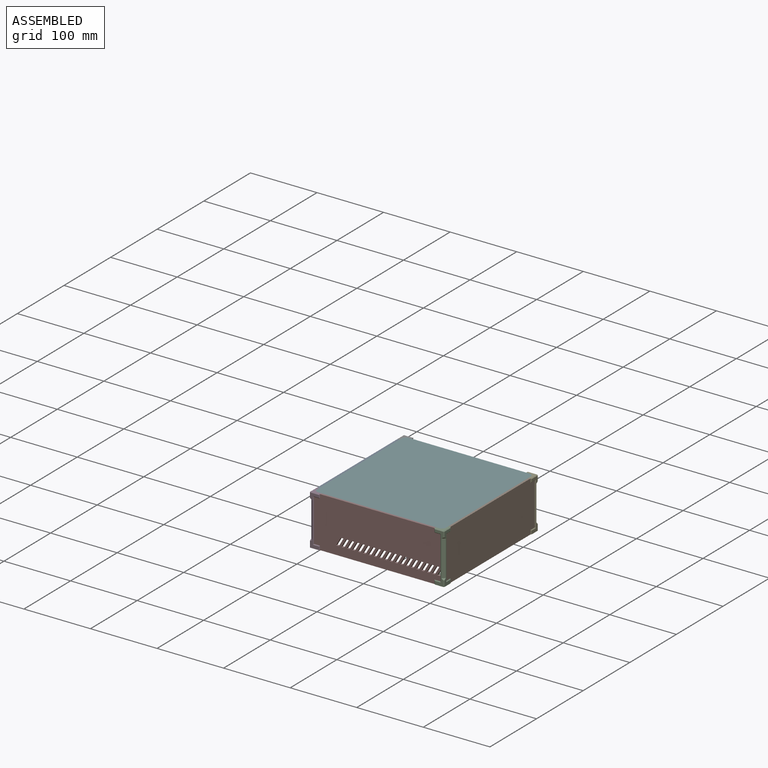
[diagram: assembled view]
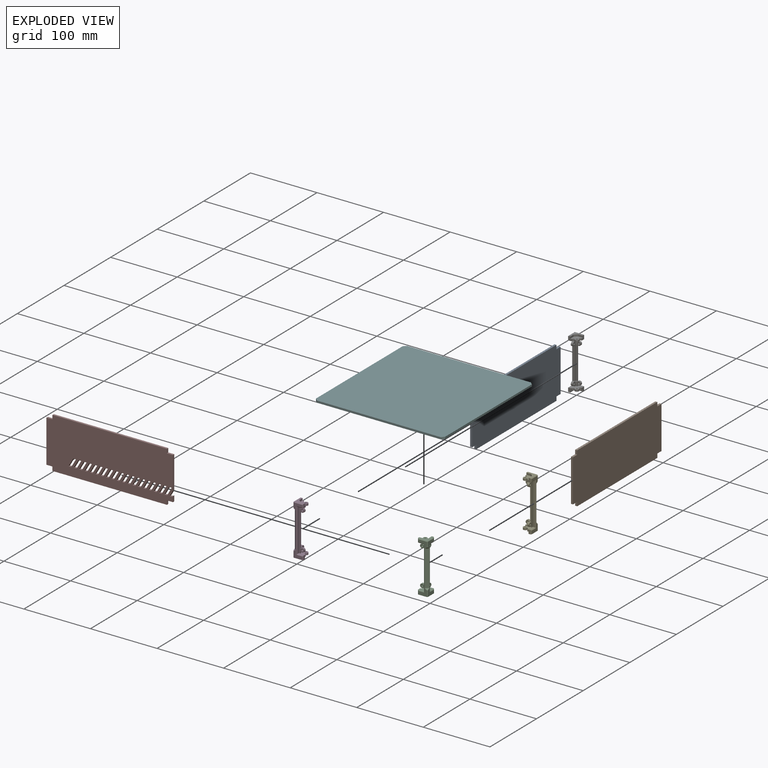
[diagram: exploded view]
GUIDED TOUR — MATED ASSEMBLY (Onshape document 97454ba8d18f91950a8470a4, AutoMate assembly 97454ba8d18f91950a8470a4_302fa4c81917cc30407d6a3c_9296b01ef51682fb7b4fb4d2_default)

This assembly has 8 components, labeled P0..P7 below (a component is one placed occurrence of a part; the same part can appear more than once), held together by 7 mates. A mate is a constraint between two components; its type names the relative motion it leaves free:
  FASTENED — locks the two components together rigidly (no relative motion).
Axis/direction vectors are unit vectors and 'through' points are millimeter coordinates, both in the assembly's world frame.

MATES
  1. FASTENED "Fastened 7": P5 <-> P3, direction (0.000, 0.000, 1.000) through (-105.32, 48.56, -0.74) mm
  2. FASTENED "Fastened 2": P2 <-> P7, direction (-1.000, 0.000, 0.000) through (77.68, 41.56, -0.74) mm
  3. FASTENED "Fastened 6": P4 <-> P1, direction (0.000, -1.000, 0.000) through (91.68, 227.56, -0.74) mm
  4. FASTENED "Fastened 5": P6 <-> P0, direction (0.000, -1.000, 0.000) through (-108.32, 227.56, -0.74) mm
  5. FASTENED "Fastened 4": P0 <-> P3, direction (0.000, -1.000, 0.000) through (-108.32, 55.56, -0.74) mm
  6. FASTENED "Fastened 1": P3 <-> P7, direction (1.000, 0.000, 0.000) through (-94.32, 41.56, -0.74) mm
  7. FASTENED "Fastened 3": P1 <-> P2, direction (0.000, -1.000, 0.000) through (91.68, 55.56, -0.74) mm

ASSEMBLY ORDER
  1. P4 — the base component [order verified]
  2. P6 [order verified]
  3. P1 [order verified]
  4. P0 [order verified]
  5. P3 [order verified]
  6. P2 [order verified]
  7. P5 [order verified]
  8. P7 [order verified]
(P0, P1, P5 verified with a relaxed clearance tolerance: the source model stores slight part interference there.)
Order-tag legend:
  [order verified] — this step's position reverses a verified removal order: the component was checked to insert without passing through the ones already placed.

Of the 8 components, 4 carry the full construction recipe — the FeatureScript program that regenerates the part's solid from scratch; the rest are supplied as boundary geometry only.
Each toured component is shown spotlighted twice — in the assembled view, then in the exploded view, where a leader line traces a displaced component back to its assembled socket (saturated green if recipe-attached, orange if geometry-only; every other component desaturated gray) — followed by its recipe or geometry summary and the mates that hold it.
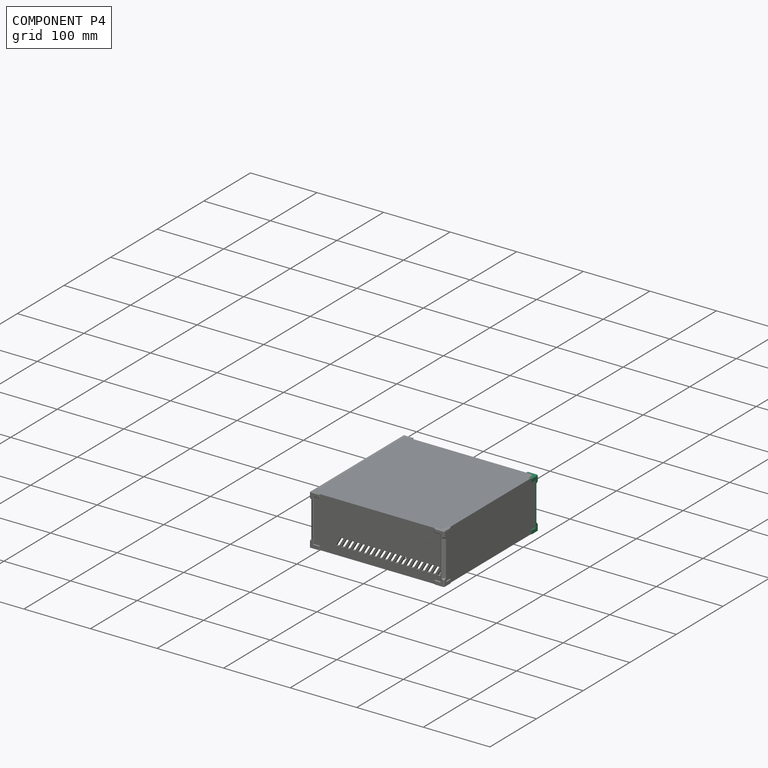
[diagram: component P4 — assembled]
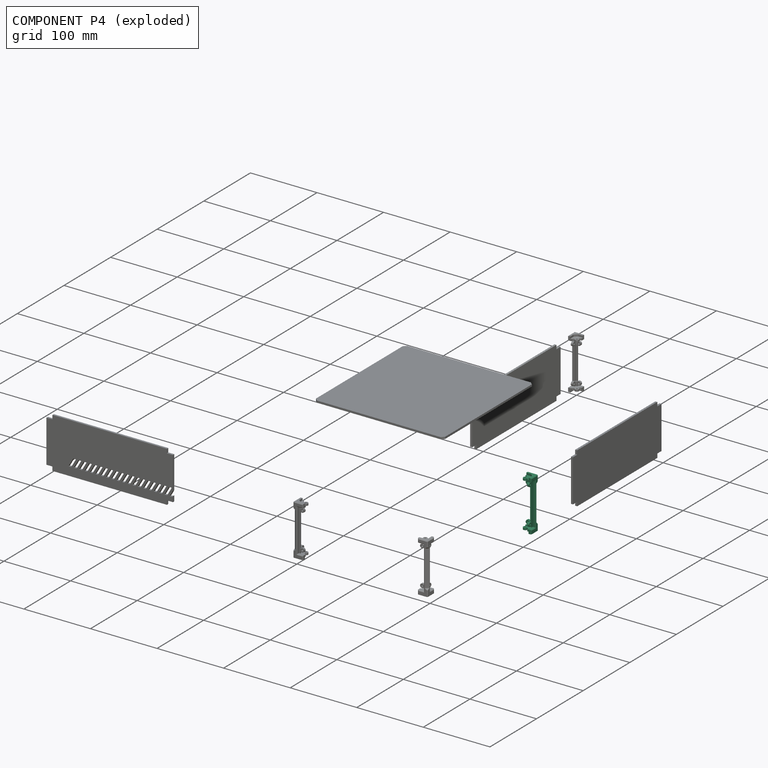
[diagram: component P4 — exploded]
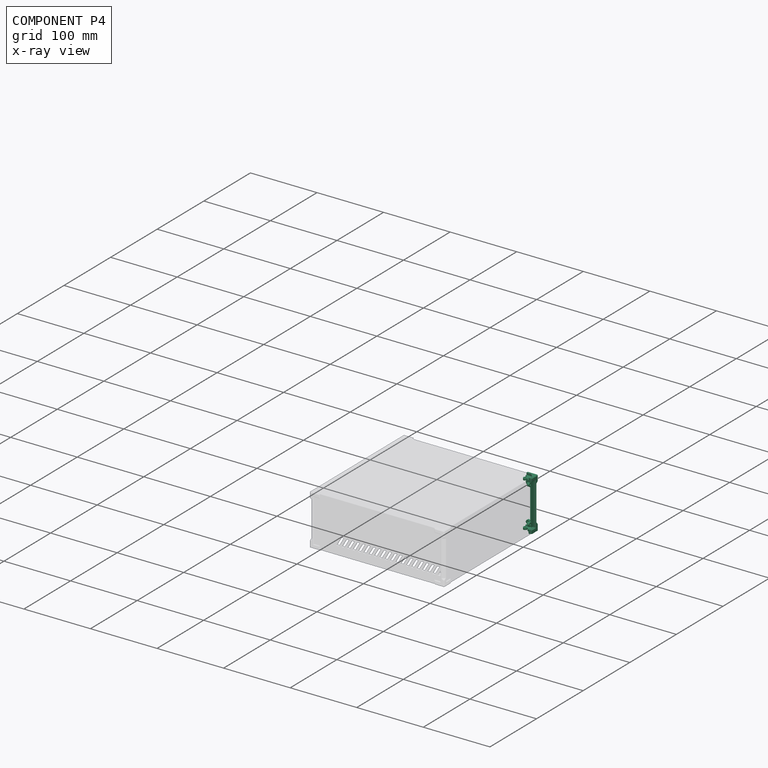
[diagram: component P4 — x-ray view]
COMPONENT P4 — same part as P2 (CADFS 00202125); its construction recipe is shown at P2.
Held by: FASTENED mate "Fastened 6" to P1.
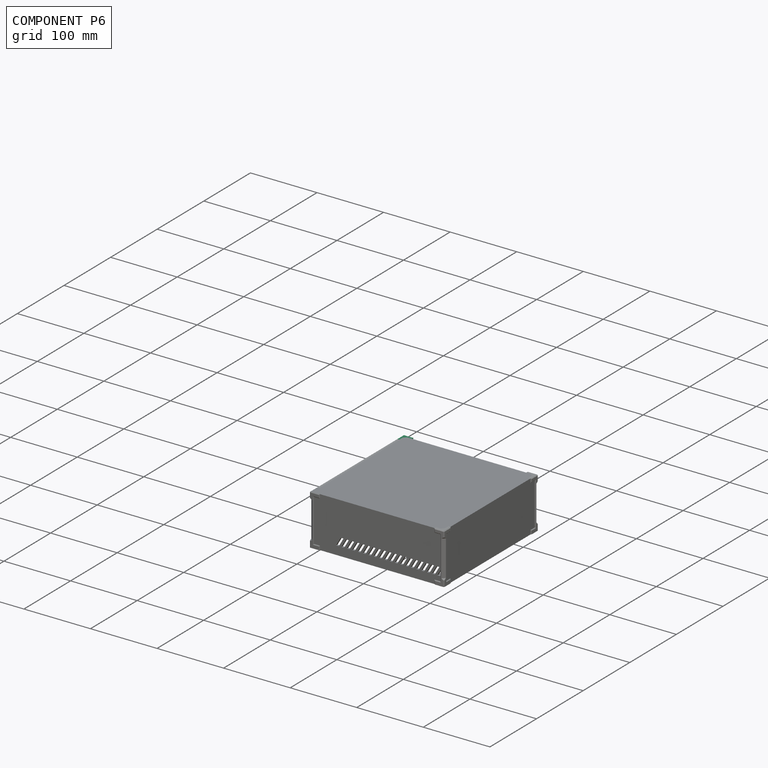
[diagram: component P6 — assembled]
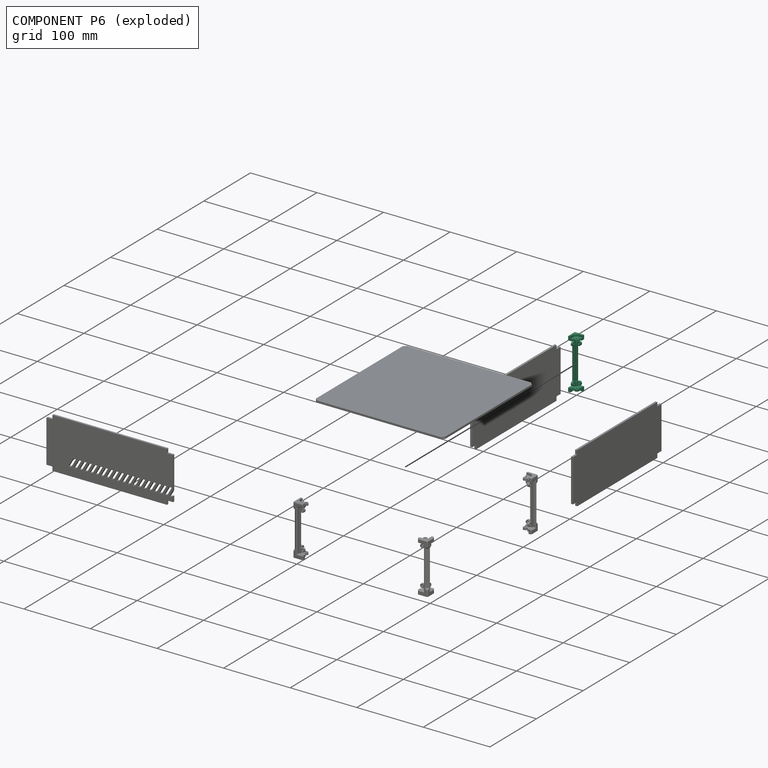
[diagram: component P6 — exploded]
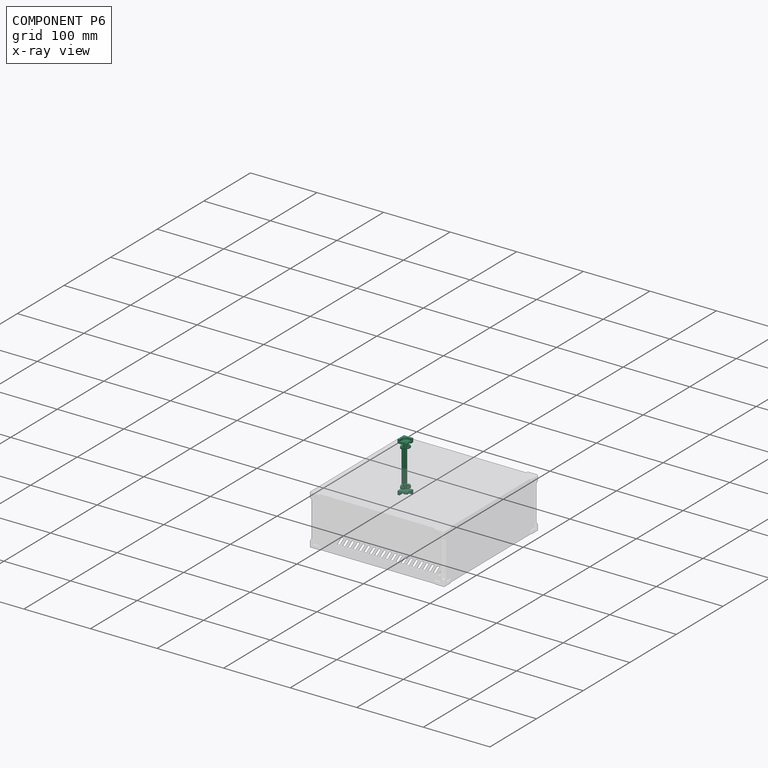
[diagram: component P6 — x-ray view]
COMPONENT P6 — same part as P2 (CADFS 00202125); its construction recipe is shown at P2.
Held by: FASTENED mate "Fastened 5" to P0.
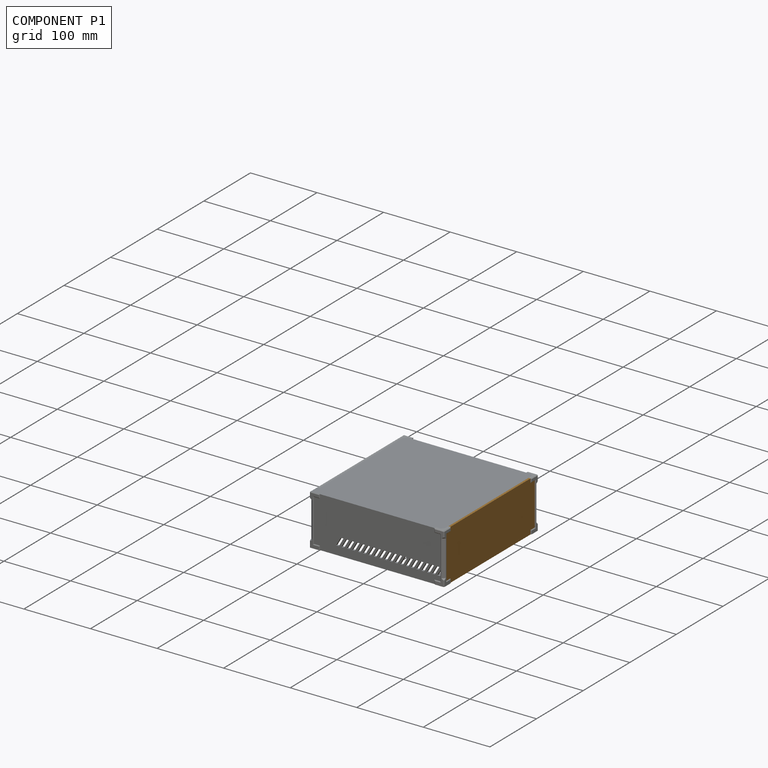
[diagram: component P1 — assembled]
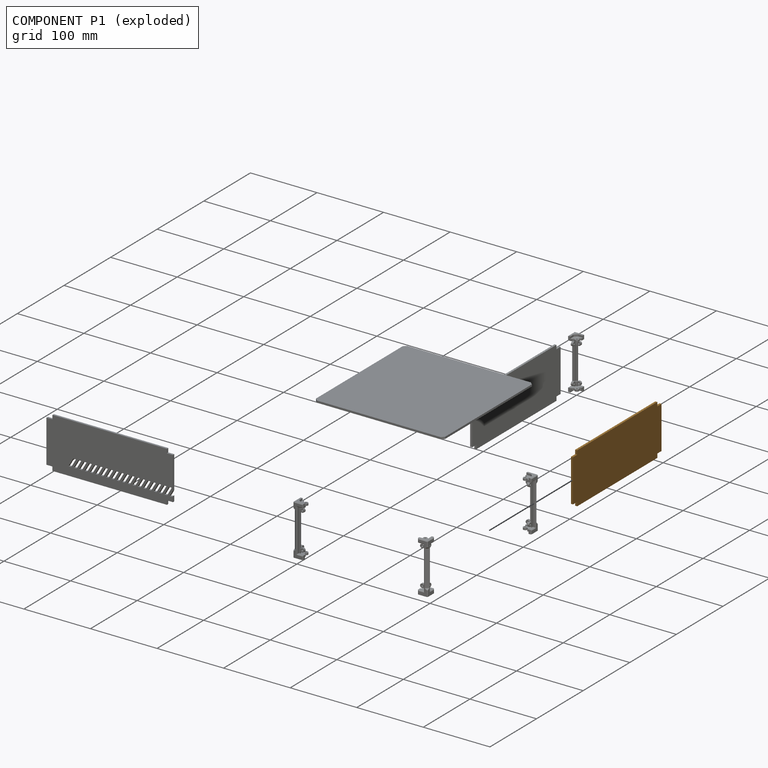
[diagram: component P1 — exploded]
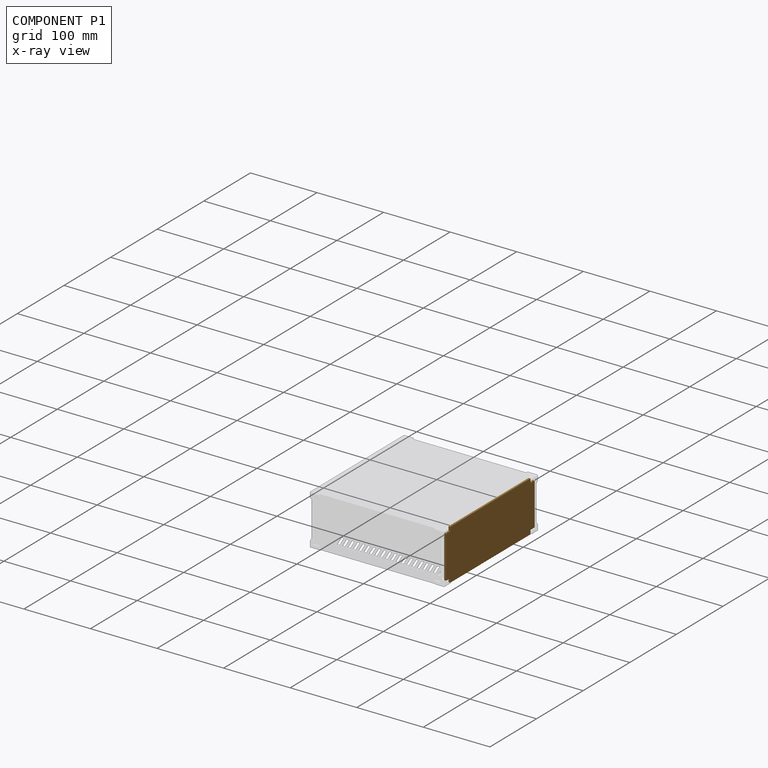
[diagram: component P1 — x-ray view]
COMPONENT P1 — geometry summary (no construction recipe available for this part):
  bounding box: 190.0 x 76.0 x 3.0 mm
  B-rep topology: 1 solid, 14 faces, 72 edges
  volume: 42672 mm^3 (99% of its bounding box)
  symmetry: 2-fold rotationally symmetric about the x axis; 2-fold rotationally symmetric about the y axis; 2-fold rotationally symmetric about the z axis; mirror-symmetric across its x mid-plane, y mid-plane, z mid-plane
Held by: FASTENED mate "Fastened 6" to P4; FASTENED mate "Fastened 3" to P2.
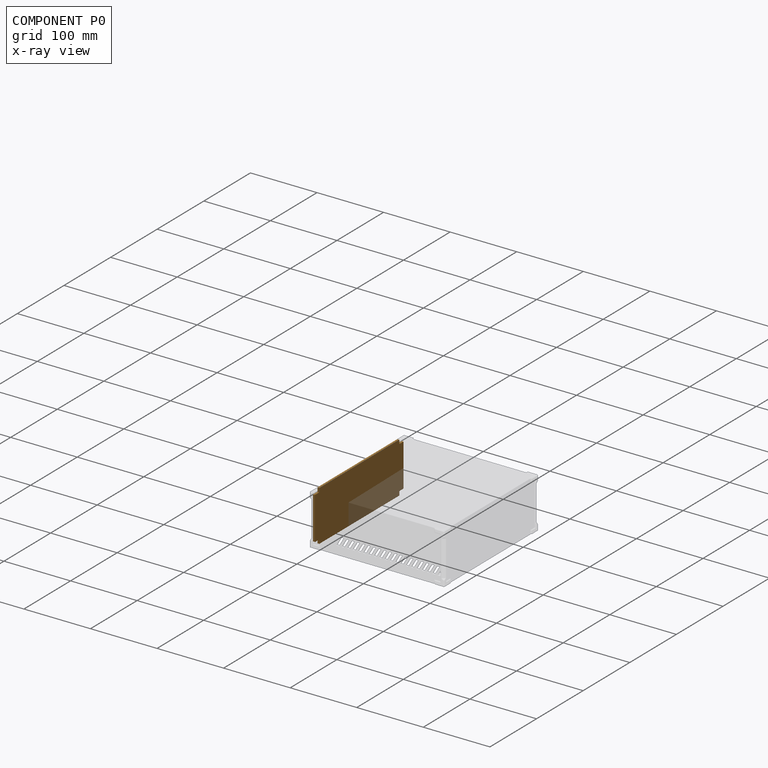
[diagram: component P0 — x-ray view]
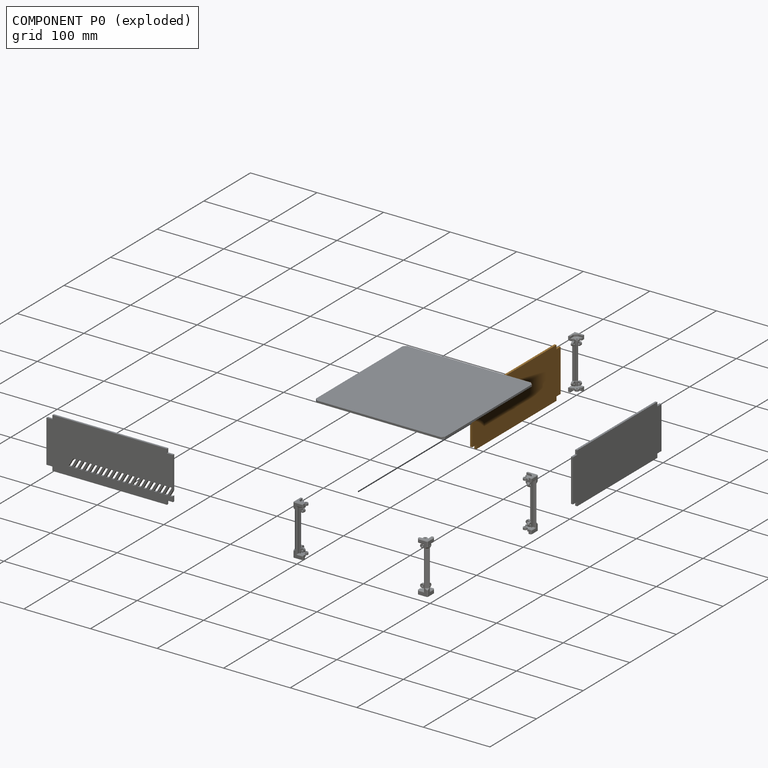
[diagram: component P0 — exploded]
COMPONENT P0 — geometry summary (no construction recipe available for this part):
  bounding box: 190.0 x 76.0 x 3.0 mm
  B-rep topology: 1 solid, 14 faces, 72 edges
  volume: 42672 mm^3 (99% of its bounding box)
  symmetry: 2-fold rotationally symmetric about the x axis; 2-fold rotationally symmetric about the y axis; 2-fold rotationally symmetric about the z axis; mirror-symmetric across its x mid-plane, y mid-plane, z mid-plane
Held by: FASTENED mate "Fastened 5" to P6; FASTENED mate "Fastened 4" to P3.
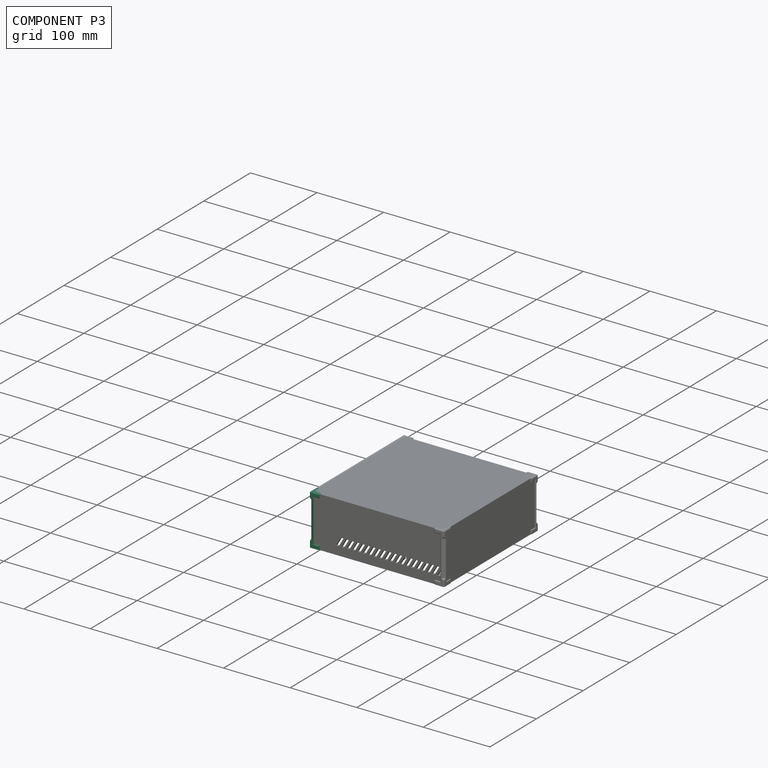
[diagram: component P3 — assembled]
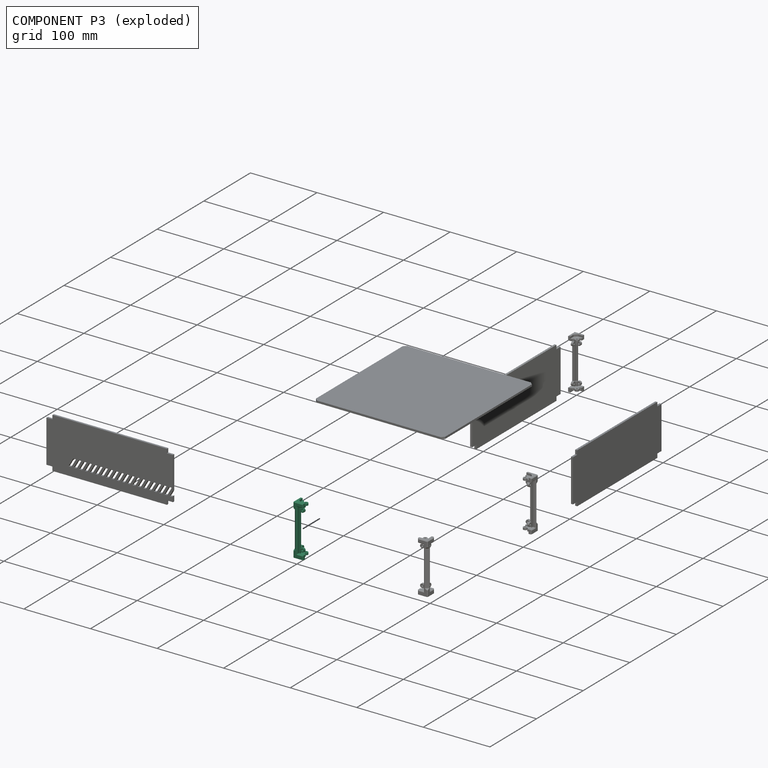
[diagram: component P3 — exploded]
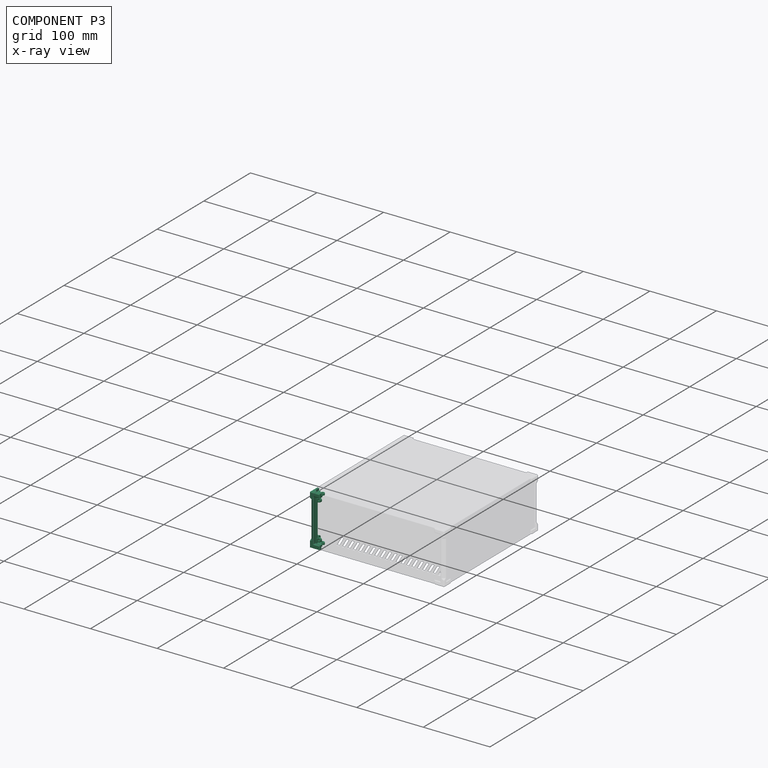
[diagram: component P3 — x-ray view]
COMPONENT P3 — same part as P2 (CADFS 00202125); its construction recipe is shown at P2.
Held by: FASTENED mate "Fastened 7" to P5; FASTENED mate "Fastened 4" to P0; FASTENED mate "Fastened 1" to P7.
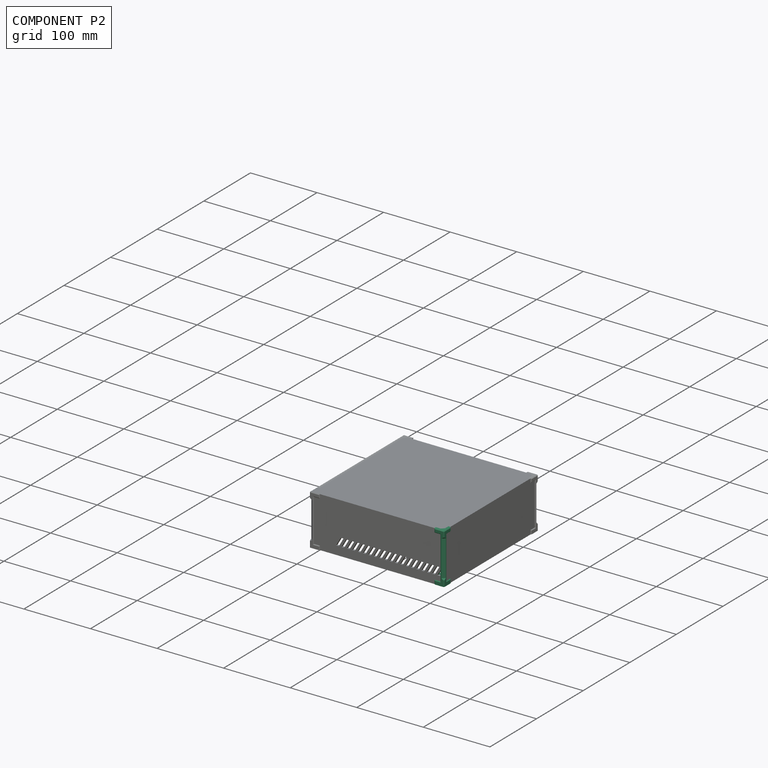
[diagram: component P2 — assembled]
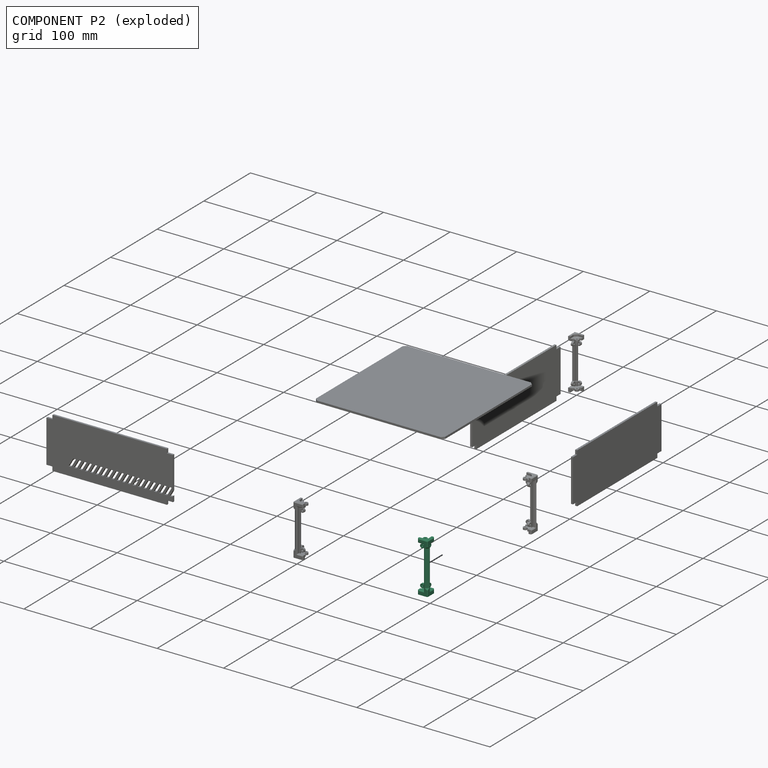
[diagram: component P2 — exploded]
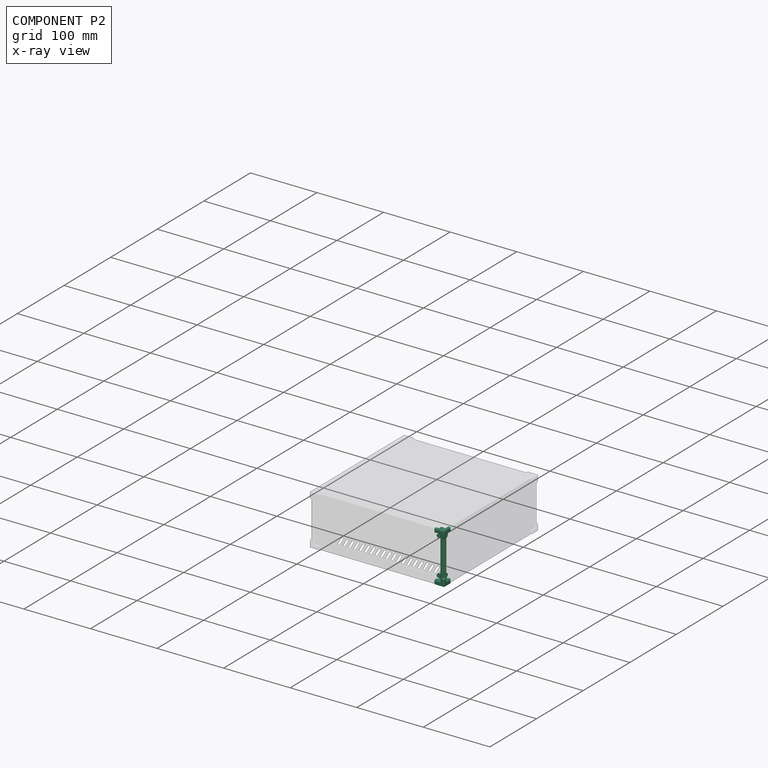
[diagram: component P2 — x-ray view]
COMPONENT P2 — recipe-attached (CADFS 00202125, mesh-verified: the recipe's output STEP matches this component's geometry to below the mesh-comparison resolution (tessellation chordal tolerance ~0.118 mm)).
Held by: FASTENED mate "Fastened 2" to P7; FASTENED mate "Fastened 3" to P1.
Construction recipe (FeatureScript — the CAD program that rebuilds this solid; sketch coordinates are in the units given by the * unit suffixes, e.g. mm):

FeatureScript 1511;
import(path : "onshape/std/geometry.fs", version : "1511.0");
import(path : "onshape/std/common.fs", version : "1511.0");
const mm = millimeter;
const VERTEX = EntityType.VERTEX;
const EDGE = EntityType.EDGE;
const FACE = EntityType.FACE;
const BODY = EntityType.BODY;
function v(x, y){return vector(x, y);}
function OD(order){return orderDisambiguation(order);}
function OSD(set){return originalSetDisambiguation(set);}
function TD(topology){return topologyDisambiguation(topology);}
function TDD(query){return trueDependencyDisambiguation(query);}
function sQuery(a, b, c) {return sketchEntityQuery(a, b, c);}

annotation { "Feature Type Name" : "Feature", "Feature Type Description" : "" }
export const myFeature = defineFeature(function(context is Context, id is Id, definition is map)
    precondition{}
    {
        {
            var Q0;
            Q0=qCreatedBy(makeId("Top.planeOp"),FACE);
            var sketch = newSketch(context, id + "F0", { "sketchPlane" : qUnion([Q0])});
            skLineSegment(sketch, "E0", {"start": v(-30.7, 8.8) * mm, "end": v(-30.7, -6.2) * mm});
            skLineSegment(sketch, "E1", {"start": v(-30.7, -6.2) * mm, "end": v(-15.7, -6.2) * mm});
            skLineSegment(sketch, "E2", {"start": v(-30.7, 8.8) * mm, "end": v(-29.7, 8.8) * mm});
            skLineSegment(sketch, "E3", {"start": v(-15.7, -6.2) * mm, "end": v(-15.7, -5.2) * mm});
            skLineSegment(sketch, "E4", {"start": v(-29.7, 8.8) * mm, "end": v(-24.7, 8.8) * mm});
            skLineSegment(sketch, "E5", {"start": v(-15.7, -5.2) * mm, "end": v(-15.7, -0.2) * mm});
            skLineSegment(sketch, "E6", {"start": v(-24.7, 8.8) * mm, "end": v(-24.7, -0.2) * mm});
            skLineSegment(sketch, "E7", {"start": v(-24.7, -0.2) * mm, "end": v(-15.7, -0.2) * mm});
            skSolve(sketch);
        }
        {
            var Q0;
            Q0=makeQuery(id+"F0.imprint","IMPRINT",FACE,{"disambiguationData":[TD([[makeQuery(id+"F0.imprint","IMPRINT",EDGE,{"derivedFrom":sQuery(id+"F0.wireOp",EDGE,"E0")}),1.0]])]});
            extrude(context, id + "F1", {"entities" : qUnion([Q0]), "depth" : 6 * mm});
        }
        {
            var Q0;
            Q0=makeQuery(id+"F1.opExtrude","CAP_FACE",FACE,{"disambiguationData":[OSD([sQuery(id+"F0.wireOp",EDGE,"E0"),sQuery(id+"F0.wireOp",EDGE,"E1"),sQuery(id+"F0.wireOp",EDGE,"E2"),sQuery(id+"F0.wireOp",EDGE,"E3"),sQuery(id+"F0.wireOp",EDGE,"E4"),sQuery(id+"F0.wireOp",EDGE,"E5"),sQuery(id+"F0.wireOp",EDGE,"E6"),sQuery(id+"F0.wireOp",EDGE,"E7")])],"isStart":false});
            var sketch = newSketch(context, id + "F2", { "sketchPlane" : qUnion([Q0])});
            skLineSegment(sketch, "E8.top", {"start": v(-30.7, -0.2) * mm, "end": v(-24.7, -0.2) * mm});
            skLineSegment(sketch, "E9", {"start": v(-24.7, -0.2) * mm, "end": v(-24.7, 1.8) * mm});
            skLineSegment(sketch, "E10", {"start": v(-24.7, 1.8) * mm, "end": v(-26.7, 1.8) * mm});
            skLineSegment(sketch, "E11", {"start": v(-26.7, 1.8) * mm, "end": v(-26.7, -0.2) * mm});
            skLineSegment(sketch, "E12", {"start": v(-24.7, -0.2) * mm, "end": v(-22.7, -0.2) * mm});
            skLineSegment(sketch, "E13", {"start": v(-22.7, -0.2) * mm, "end": v(-22.7, -2.2) * mm});
            skLineSegment(sketch, "E14", {"start": v(-22.7, -2.2) * mm, "end": v(-24.7, -2.2) * mm});
            skLineSegment(sketch, "E15", {"start": v(-24.7, -6.2) * mm, "end": v(-29.7, -6.2) * mm});
            skLineSegment(sketch, "E16", {"start": v(-24.7, -6.2) * mm, "end": v(-24.7, -2.2) * mm});
            skLineSegment(sketch, "E17", {"start": v(-24.7, -0.2) * mm, "end": v(-24.7, -2.2) * mm});
            skLineSegment(sketch, "E18", {"start": v(-30.7, -0.2) * mm, "end": v(-30.7, -5.2) * mm});
            skLineSegment(sketch, "E19", {"start": v(-30.7, -5.2) * mm, "end": v(-29.7, -6.2) * mm});
            skSolve(sketch);
        }
        {
            var Q0;
            Q0=makeQuery(id+"F2.imprint","IMPRINT",FACE,{"disambiguationData":[TD([[makeQuery(id+"F2.imprint","IMPRINT",EDGE,{"derivedFrom":sQuery(id+"F2.wireOp",EDGE,"E8.bottom")}),1.0]])]});
            var Q1;
            {var subQ0=sQuery(id+"F2.wireOp",EDGE,"E12");Q1=makeQuery(id+"F2.imprint","IMPRINT",FACE,{"disambiguationData":[TD([[makeQuery(id+"F2.imprint","IMPRINT",EDGE,{"derivedFrom":subQ0}),-1.0]])]});}
            var Q2;
            Q2=makeQuery(id+"F2.imprint","IMPRINT",FACE,{"disambiguationData":[TD([[makeQuery(id+"F2.imprint","IMPRINT",EDGE,{"derivedFrom":sQuery(id+"F2.wireOp",EDGE,"E15")}),1.0]])]});
            var Q3;
            {var subQ0=sQuery(id+"F2.wireOp",EDGE,"E9");Q3=makeQuery(id+"F2.imprint","IMPRINT",FACE,{"disambiguationData":[TD([[makeQuery(id+"F2.imprint","IMPRINT",EDGE,{"derivedFrom":subQ0}),-1.0]])]});}
            extrude(context, id + "F3", {"entities" : qUnion([Q0, Q1, Q2, Q3]), "operationType" : NewBodyOperationType.ADD, "depth" : 5 * mm});
        }
        {
            var Q0;
            Q0=makeQuery(id+"F3.opExtrude","CAP_FACE",FACE,{"disambiguationData":[OSD([sQuery(id+"F2.wireOp",EDGE,"E8.bottom"),sQuery(id+"F2.wireOp",EDGE,"E8.top"),sQuery(id+"F2.wireOp",EDGE,"E8.left"),sQuery(id+"F2.wireOp",EDGE,"E8.right"),sQuery(id+"F2.wireOp",EDGE,"E9"),sQuery(id+"F2.wireOp",EDGE,"E10"),sQuery(id+"F2.wireOp",EDGE,"E11"),sQuery(id+"F2.wireOp",EDGE,"E12"),sQuery(id+"F2.wireOp",EDGE,"E13"),sQuery(id+"F2.wireOp",EDGE,"E14")])],"isStart":false});
            var sketch = newSketch(context, id + "F4", { "sketchPlane" : qUnion([Q0])});
            skLineSegment(sketch, "E20", {"start": v(-24.7, -6.2) * mm, "end": v(-26.7, -6.2) * mm});
            skLineSegment(sketch, "E21", {"start": v(-30.7, -0.2) * mm, "end": v(-30.7, -2.2) * mm});
            skLineSegment(sketch, "E22", {"start": v(-26.7, -6.2) * mm, "end": v(-30.7, -2.2) * mm});
            skLineSegment(sketch, "E23", {"start": v(-24.7, -6.2) * mm, "end": v(-24.7, -2.2) * mm});
            skLineSegment(sketch, "E24", {"start": v(-24.7, -2.2) * mm, "end": v(-22.7, -2.2) * mm});
            skLineSegment(sketch, "E25", {"start": v(-22.7, -2.2) * mm, "end": v(-22.7, -0.2) * mm});
            skLineSegment(sketch, "E26", {"start": v(-22.7, -0.2) * mm, "end": v(-24.7, -0.2) * mm});
            skLineSegment(sketch, "E27", {"start": v(-24.7, -0.2) * mm, "end": v(-24.7, 1.8) * mm});
            skLineSegment(sketch, "E28", {"start": v(-24.7, 1.8) * mm, "end": v(-26.7, 1.8) * mm});
            skLineSegment(sketch, "E29", {"start": v(-26.7, 1.8) * mm, "end": v(-26.7, -0.2) * mm});
            skLineSegment(sketch, "E30", {"start": v(-26.7, -0.2) * mm, "end": v(-30.7, -0.2) * mm});
            skSolve(sketch);
        }
        {
            var Q0;
            Q0=makeQuery(id+"F4.imprint","IMPRINT",FACE,{"disambiguationData":[TD([[makeQuery(id+"F4.imprint","IMPRINT",EDGE,{"derivedFrom":sQuery(id+"F4.wireOp",EDGE,"E20")}),1.0]])]});
            extrude(context, id + "F5", {"entities" : qUnion([Q0]), "operationType" : NewBodyOperationType.ADD, "depth" : 27 * mm});
        }
        {
            var Q0;
            Q0=makeQuery(id+"F5.boolean.opBoolean","MERGE",FACE,{"derivedFrom":[makeQuery(id+"F3.opExtrude","SWEPT_FACE",FACE,{"disambiguationData":[OSD([sQuery(id+"F2.wireOp",EDGE,"E14")])]}),makeQuery(id+"F5.opExtrude","SWEPT_FACE",FACE,{"disambiguationData":[OSD([sQuery(id+"FcikvxoAmVT8Sga_1.wireOp",EDGE,"Ugr4Xeua-PaRH-PEAE-46ir-bzMubUFrfAmX")])]})]});
            var sketch = newSketch(context, id + "F6", { "sketchPlane" : qUnion([Q0])});
            skLineSegment(sketch, "E31", {"start": v(-22.7, 6) * mm, "end": v(-22.7, 11) * mm});
            skLineSegment(sketch, "E32", {"start": v(-22.7, 11) * mm, "end": v(-19.7, 11) * mm});
            skCircle(sketch, "E33", {"center": v(-19.7, 11) * mm, "radius": 1.25 * mm});
            skCircle(sketch, "E34", {"center": v(-19.7, 11) * mm, "radius": 3 * mm});
            skLineSegment(sketch, "E35", {"start": v(-22.7, 6) * mm, "end": v(-22.7, 9) * mm});
            skLineSegment(sketch, "E36", {"start": v(-22.7, 9) * mm, "end": v(-21.94, 9) * mm});
            skLineSegment(sketch, "E37", {"start": v(-22.7, 11) * mm, "end": v(-22.7, 13) * mm});
            skLineSegment(sketch, "E38", {"start": v(-22.7, 13) * mm, "end": v(-21.94, 13) * mm});
            skSolve(sketch);
        }
        {
            var Q0;
            Q0=makeQuery(id+"F6.imprint","IMPRINT",FACE,{"disambiguationData":[TD([[makeQuery(id+"F6.imprint","IMPRINT",EDGE,{"derivedFrom":sQuery(id+"F6.wireOp",EDGE,"E33")}),-1.0]])]});
            var Q1;
            {var subQ0=sQuery(id+"F6.wireOp",EDGE,"E37");Q1=makeQuery(id+"F6.imprint","IMPRINT",FACE,{"disambiguationData":[TD([[makeQuery(id+"F6.imprint","IMPRINT",EDGE,{"derivedFrom":subQ0}),1.0]])]});}
            var Q2;
            {var subQ0=sQuery(id+"F6.wireOp",EDGE,"E31");Q2=makeQuery(id+"F6.imprint","IMPRINT",FACE,{"disambiguationData":[TD([[makeQuery(id+"F6.imprint","IMPRINT",EDGE,{"derivedFrom":subQ0}),1.0]])]});}
            extrude(context, id + "F7", {"entities" : qUnion([Q0, Q1, Q2]), "operationType" : NewBodyOperationType.ADD, "oppositeDirection" : true, "depth" : 3 * mm});
        }
        {
            var Q0;
            Q0=makeQuery(id+"F5.boolean.opBoolean","MERGE",FACE,{"derivedFrom":[makeQuery(id+"F3.opExtrude","SWEPT_FACE",FACE,{"disambiguationData":[OSD([sQuery(id+"F2.wireOp",EDGE,"E11")])]}),makeQuery(id+"F5.opExtrude","SWEPT_FACE",FACE,{"disambiguationData":[OSD([sQuery(id+"FcikvxoAmVT8Sga_1.wireOp",EDGE,"rjj8wiBv-6VFg-MGKm-luXr-hqUBBP5AjTz5")])]})]});
            var sketch = newSketch(context, id + "F8", { "sketchPlane" : qUnion([Q0])});
            skLineSegment(sketch, "E39", {"start": v(-1.8, 6) * mm, "end": v(-1.8, 9) * mm});
            skLineSegment(sketch, "E40", {"start": v(-1.8, 9) * mm, "end": v(-1.8, 13) * mm});
            skLineSegment(sketch, "E41", {"start": v(-1.8, 11) * mm, "end": v(-4.8, 11) * mm});
            skCircle(sketch, "E42", {"center": v(-4.8, 11) * mm, "radius": 1.25 * mm});
            skCircle(sketch, "E43", {"center": v(-4.8, 11) * mm, "radius": 3 * mm});
            skLineSegment(sketch, "E44", {"start": v(-1.8, 13) * mm, "end": v(-2.56, 13) * mm});
            skLineSegment(sketch, "E45", {"start": v(-1.8, 9) * mm, "end": v(-2.56, 9) * mm});
            skSolve(sketch);
        }
        {
            var Q0;
            Q0=qSketchRegion(id+"F8",true);
            extrude(context, id + "F9", {"entities" : qUnion([Q0]), "operationType" : NewBodyOperationType.ADD, "oppositeDirection" : true, "depth" : 3 * mm});
        }
        {
            var Q0;
            Q0=makeQuery(id+"F7.opExtrude","SWEPT_FACE",FACE,{"disambiguationData":[OSD([sQuery(id+"F6.wireOp",EDGE,"E38")])]});
            var sketch = newSketch(context, id + "F10", { "sketchPlane" : qUnion([Q0])});
            skLineSegment(sketch, "E46.0", {"start": v(-23.7, 1.8) * mm, "end": v(-24.7, 1.8) * mm});
            skLineSegment(sketch, "E47", {"start": v(-22.7, 0.8) * mm, "end": v(-23.7, 1.8) * mm});
            skLineSegment(sketch, "E48", {"start": v(-24.7, 1.8) * mm, "end": v(-24.7, -0.2) * mm});
            skLineSegment(sketch, "E49", {"start": v(-24.7, -0.2) * mm, "end": v(-22.7, -0.2) * mm});
            skLineSegment(sketch, "E50", {"start": v(-22.7, -0.2) * mm, "end": v(-22.7, 0.8) * mm});
            skSolve(sketch);
        }
        {
            var Q0;
            Q0=makeQuery(id+"F10.imprint","IMPRINT",FACE,{"disambiguationData":[TD([[makeQuery(id+"F10.imprint","IMPRINT",EDGE,{"derivedFrom":sQuery(id+"F10.wireOp",EDGE,"E46.0")}),1.0]])]});
            extrude(context, id + "F11", {"entities" : qUnion([Q0]), "operationType" : NewBodyOperationType.ADD, "oppositeDirection" : true, "depth" : 4 * mm});
        }
        {
            var Q0;
            Q0=makeQuery(id+"F1.opExtrude","CAP_FACE",FACE,{"disambiguationData":[OSD([sQuery(id+"F0.wireOp",EDGE,"E0"),sQuery(id+"F0.wireOp",EDGE,"E1"),sQuery(id+"F0.wireOp",EDGE,"E2"),sQuery(id+"F0.wireOp",EDGE,"E3"),sQuery(id+"F0.wireOp",EDGE,"E4"),sQuery(id+"F0.wireOp",EDGE,"E5"),sQuery(id+"F0.wireOp",EDGE,"E6"),sQuery(id+"F0.wireOp",EDGE,"E7")])],"isStart":true});
            var sketch = newSketch(context, id + "F12", { "sketchPlane" : qUnion([Q0])});
            skLineSegment(sketch, "E51", {"start": v(-15.7, 0.2) * mm, "end": v(-15.7, 2.2) * mm});
            skLineSegment(sketch, "E52", {"start": v(-15.7, 2.2) * mm, "end": v(-22.7, 2.2) * mm});
            skLineSegment(sketch, "E53", {"start": v(-15.7, 0.2) * mm, "end": v(-24.7, 0.2) * mm});
            skLineSegment(sketch, "E54", {"start": v(-24.7, 0.2) * mm, "end": v(-24.7, -8.8) * mm});
            skLineSegment(sketch, "E55", {"start": v(-24.7, -8.8) * mm, "end": v(-26.7, -8.8) * mm});
            skLineSegment(sketch, "E56", {"start": v(-26.7, -8.8) * mm, "end": v(-26.7, -1.8) * mm});
            skLineSegment(sketch, "E57", {"start": v(-22.7, 2.2) * mm, "end": v(-26.7, -1.8) * mm});
            skSolve(sketch);
        }
        {
            var Q0;
            {var subQ0=sQuery(id+"F12.wireOp",EDGE,"E54");Q0=makeQuery(id+"F12.imprint","IMPRINT",FACE,{"disambiguationData":[TD([[makeQuery(id+"F12.imprint","IMPRINT",EDGE,{"derivedFrom":subQ0}),1.0]])]});}
            var Q1;
            Q1=makeQuery(id+"F12.imprint","IMPRINT",FACE,{"disambiguationData":[TD([[makeQuery(id+"F12.imprint","IMPRINT",EDGE,{"derivedFrom":sQuery(id+"F12.wireOp",EDGE,"E51")}),-1.0]])]});
            extrude(context, id + "F13", {"entities" : qUnion([Q0, Q1]), "operationType" : NewBodyOperationType.REMOVE, "oppositeDirection" : true, "depth" : 3 * mm});
        }
        {
            var Q0;
            Q0=makeQuery(id+"F13.boolean.opBoolean","COPY",FACE,{"derivedFrom":makeQuery(id+"F13.opExtrude","CAP_FACE",FACE,{"disambiguationData":[OSD([sQuery(id+"F12.wireOp",EDGE,"E51"),sQuery(id+"F12.wireOp",EDGE,"E52"),sQuery(id+"F12.wireOp",EDGE,"E53"),sQuery(id+"F12.wireOp",EDGE,"E57")])],"isStart":false})});
            var sketch = newSketch(context, id + "F14", { "sketchPlane" : qUnion([Q0])});
            skLineSegment(sketch, "E58", {"start": v(-24.7, 0.2) * mm, "end": v(-24.7, -7.8) * mm});
            skLineSegment(sketch, "E59", {"start": v(-16.7, 0.2) * mm, "end": v(-24.7, -7.8) * mm});
            skLineSegment(sketch, "E60", {"start": v(-20.7, -3.8) * mm, "end": v(-19.3, -5.2) * mm});
            skCircle(sketch, "E61", {"center": v(-19.3, -5.2) * mm, "radius": 1.25 * mm});
            skCircle(sketch, "E62", {"center": v(-19.3, -5.2) * mm, "radius": 3 * mm});
            skLineSegment(sketch, "E63", {"start": v(-16.7, 0.2) * mm, "end": v(-24.7, 0.2) * mm});
            skSolve(sketch);
        }
        {
            var Q0;
            Q0=qSketchRegion(id+"F14",true);
            extrude(context, id + "F15", {"entities" : qUnion([Q0]), "operationType" : NewBodyOperationType.ADD, "oppositeDirection" : true, "depth" : 3 * mm});
        }
        {
            var Q0;
            Q0=makeQuery(id+"F1.opExtrude","SWEPT_BODY",BODY,{"disambiguationData":[OSD([sQuery(id+"F0.wireOp",EDGE,"E0"),sQuery(id+"F0.wireOp",EDGE,"E1"),sQuery(id+"F0.wireOp",EDGE,"E2"),sQuery(id+"F0.wireOp",EDGE,"E3"),sQuery(id+"F0.wireOp",EDGE,"E4"),sQuery(id+"F0.wireOp",EDGE,"E5"),sQuery(id+"F0.wireOp",EDGE,"E6"),sQuery(id+"F0.wireOp",EDGE,"E7")])]});
            var Q1;
            Q1=makeQuery(id+"F5.opExtrude","CAP_FACE",FACE,{"disambiguationData":[OSD([sQuery(id+"F4.wireOp",EDGE,"E20"),sQuery(id+"F4.wireOp",EDGE,"E21"),sQuery(id+"F4.wireOp",EDGE,"E22"),sQuery(id+"F4.wireOp",EDGE,"E23"),sQuery(id+"F4.wireOp",EDGE,"E24"),sQuery(id+"F4.wireOp",EDGE,"E25"),sQuery(id+"F4.wireOp",EDGE,"E26"),sQuery(id+"F4.wireOp",EDGE,"E27"),sQuery(id+"F4.wireOp",EDGE,"E28"),sQuery(id+"F4.wireOp",EDGE,"E29"),sQuery(id+"F4.wireOp",EDGE,"E30")])],"isStart":false});
            mirror(context, id + "F16", {"operationType" : NewBodyOperationType.ADD, "entities" : qUnion([Q0]), "mirrorPlane" : qUnion([Q1])});
        }
        {
            var Q0;
            Q0=makeQuery(id+"FhzFfjnD5mDQNPN_1.boolean.opBoolean","MERGE",EDGE,{"derivedFrom":[makeQuery(id+"FrQZREyW5eWcuGQ_1.boolean.opBoolean","MERGE",EDGE,{"derivedFrom":[makeQuery(id+"F1.opExtrude","SWEPT_EDGE",EDGE,{"disambiguationData":[OSD([sQuery(id+"F0.wireOp",EDGE,"E0"),sQuery(id+"F0.wireOp",EDGE,"E1")])]}),makeQuery(id+"FrQZREyW5eWcuGQ_1.opExtrude","SWEPT_EDGE",EDGE,{"disambiguationData":[OSD([sQuery(id+"FOzdUzQN7WSNxo8_1.wireOp",EDGE,"WiYNZVCE-U4Jg-TT48-NUzQ-lxR1TrsUEIwd"),sQuery(id+"FOzdUzQN7WSNxo8_1.wireOp",EDGE,"8d8B1xfc-AYmp-EXSV-HG8z-yugG2Eprzqf7")])]})]}),makeQuery(id+"FhzFfjnD5mDQNPN_1.opExtrude","CAP_EDGE",EDGE,{"disambiguationData":[OSD([sQuery(id+"FUuBHju1a3qaWlO_1.wireOp",EDGE,"Y2hAY4q1-hRi0-7PEO-YUI0-E3ofIxBZuGLo")])],"isStart":true})]});
            var Q1;
            {var subQ0=makeQuery(id+"F5.boolean.opBoolean","MERGE",EDGE,{"derivedFrom":[makeQuery(id+"F3.opExtrude","SWEPT_EDGE",EDGE,{"disambiguationData":[OSD([sQuery(id+"F0.wireOp",EDGE,"E1"),sQuery(id+"F2.wireOp",EDGE,"E15"),sQuery(id+"F2.wireOp",EDGE,"E16")])]}),makeQuery(id+"F5.opExtrude","SWEPT_EDGE",EDGE,{"disambiguationData":[OSD([sQuery(id+"F4.wireOp",EDGE,"E20"),sQuery(id+"F4.wireOp",EDGE,"E23")])]})]});Q1=makeQuery(id+"F16.boolean.opBoolean","MERGE",EDGE,{"derivedFrom":[subQ0,makeQuery(id+"F16.opPattern","COPY",EDGE,{"derivedFrom":subQ0,"instanceName":"1"})]});}
            var Q2;
            {var subQ0=sQuery(id+"F0.wireOp",EDGE,"E1");Q2=makeQuery(id+"F3.boolean.opBoolean","SPLIT",EDGE,{"disambiguationData":[TD([makeQuery(id+"F3.opExtrude","SWEPT_FACE",FACE,{"disambiguationData":[OSD([sQuery(id+"F2.wireOp",EDGE,"E16")])]})])],"derivedFrom":makeQuery(id+"F1.opExtrude","CAP_EDGE",EDGE,{"disambiguationData":[OSD([subQ0])],"isStart":false})});}
            var Q3;
            {var subQ2=sQuery(id+"F0.wireOp",EDGE,"E0");Q3=makeQuery(id+"F3.boolean.opBoolean","SPLIT",EDGE,{"disambiguationData":[TD([makeQuery(id+"F3.opExtrude","SWEPT_FACE",FACE,{"disambiguationData":[OSD([sQuery(id+"F2.wireOp",EDGE,"E8.top")])]})])],"derivedFrom":makeQuery(id+"F1.opExtrude","CAP_EDGE",EDGE,{"disambiguationData":[OSD([subQ2])],"isStart":false})});}
            var Q4;
            {var subQ0=makeQuery(id+"F5.boolean.opBoolean","MERGE",EDGE,{"derivedFrom":[makeQuery(id+"F3.opExtrude","SWEPT_EDGE",EDGE,{"disambiguationData":[OSD([sQuery(id+"F0.wireOp",EDGE,"E0"),sQuery(id+"F2.wireOp",EDGE,"E8.top"),sQuery(id+"F2.wireOp",EDGE,"E18")])]}),makeQuery(id+"F5.opExtrude","SWEPT_EDGE",EDGE,{"disambiguationData":[OSD([sQuery(id+"F4.wireOp",EDGE,"E21"),sQuery(id+"F4.wireOp",EDGE,"E30")])]})]});Q4=makeQuery(id+"F16.boolean.opBoolean","MERGE",EDGE,{"derivedFrom":[subQ0,makeQuery(id+"F16.opPattern","COPY",EDGE,{"derivedFrom":subQ0,"instanceName":"1"})]});}
            var Q5;
            {var subQ2=sQuery(id+"F0.wireOp",EDGE,"E0");Q5=makeQuery(id+"F16.opPattern","COPY",EDGE,{"derivedFrom":makeQuery(id+"F3.boolean.opBoolean","SPLIT",EDGE,{"disambiguationData":[TD([makeQuery(id+"F3.opExtrude","SWEPT_FACE",FACE,{"disambiguationData":[OSD([sQuery(id+"F2.wireOp",EDGE,"E8.top")])]})])],"derivedFrom":makeQuery(id+"F1.opExtrude","CAP_EDGE",EDGE,{"disambiguationData":[OSD([subQ2])],"isStart":false})}),"instanceName":"1"});}
            var Q6;
            {var subQ0=sQuery(id+"F0.wireOp",EDGE,"E1");Q6=makeQuery(id+"F16.opPattern","COPY",EDGE,{"derivedFrom":makeQuery(id+"F3.boolean.opBoolean","SPLIT",EDGE,{"disambiguationData":[TD([makeQuery(id+"F3.opExtrude","SWEPT_FACE",FACE,{"disambiguationData":[OSD([sQuery(id+"F2.wireOp",EDGE,"E16")])]})])],"derivedFrom":makeQuery(id+"F1.opExtrude","CAP_EDGE",EDGE,{"disambiguationData":[OSD([subQ0])],"isStart":false})}),"instanceName":"1"});}
            var Q7;
            Q7=makeQuery(id+"F16.opPattern","COPY",EDGE,{"derivedFrom":makeQuery(id+"F1.opExtrude","SWEPT_EDGE",EDGE,{"disambiguationData":[OSD([sQuery(id+"F0.wireOp",EDGE,"E1"),sQuery(id+"F0.wireOp",EDGE,"E3")])]}),"instanceName":"1"});
            var Q8;
            Q8=makeQuery(id+"F16.opPattern","COPY",EDGE,{"derivedFrom":makeQuery(id+"F1.opExtrude","SWEPT_EDGE",EDGE,{"disambiguationData":[OSD([sQuery(id+"F0.wireOp",EDGE,"E0"),sQuery(id+"F0.wireOp",EDGE,"E2")])]}),"instanceName":"1"});
            var Q9;
            Q9=makeQuery(id+"FrQZREyW5eWcuGQ_1.boolean.opBoolean","MERGE",EDGE,{"derivedFrom":[makeQuery(id+"F1.opExtrude","SWEPT_EDGE",EDGE,{"disambiguationData":[OSD([sQuery(id+"F0.wireOp",EDGE,"E0"),sQuery(id+"F0.wireOp",EDGE,"E2")])]}),makeQuery(id+"FrQZREyW5eWcuGQ_1.opExtrude","SWEPT_EDGE",EDGE,{"disambiguationData":[OSD([sQuery(id+"FOzdUzQN7WSNxo8_1.wireOp",EDGE,"bvd9bl0E-zov9-mno0-jdsr-QOLO0tRtuMB9"),sQuery(id+"FOzdUzQN7WSNxo8_1.wireOp",EDGE,"WiYNZVCE-U4Jg-TT48-NUzQ-lxR1TrsUEIwd")])]})]});
            var Q10;
            Q10=makeQuery(id+"FrQZREyW5eWcuGQ_1.boolean.opBoolean","MERGE",EDGE,{"derivedFrom":[makeQuery(id+"F1.opExtrude","SWEPT_EDGE",EDGE,{"disambiguationData":[OSD([sQuery(id+"F0.wireOp",EDGE,"E1"),sQuery(id+"F0.wireOp",EDGE,"E3")])]}),makeQuery(id+"FrQZREyW5eWcuGQ_1.opExtrude","SWEPT_EDGE",EDGE,{"disambiguationData":[OSD([sQuery(id+"FOzdUzQN7WSNxo8_1.wireOp",EDGE,"8d8B1xfc-AYmp-EXSV-HG8z-yugG2Eprzqf7"),sQuery(id+"FOzdUzQN7WSNxo8_1.wireOp",EDGE,"MSLuVhra-DmRv-DVba-FcVb-sEYbxNxOgFvK")])]})]});
            var Q11;
            Q11=makeQuery(id+"FhzFfjnD5mDQNPN_1.opExtrude","CAP_EDGE",EDGE,{"disambiguationData":[OSD([sQuery(id+"FUuBHju1a3qaWlO_1.wireOp",EDGE,"4F8UiIUv-5H1C-12AU-MrLI-4g8t5kWoGJfL")])],"isStart":true});
            var Q12;
            Q12=makeQuery(id+"FLNWeMOsxUtLRx3_1.boolean.opBoolean","MERGE",EDGE,{"derivedFrom":[makeQuery(id+"FhzFfjnD5mDQNPN_1.opExtrude","SWEPT_EDGE",EDGE,{"disambiguationData":[OSD([sQuery(id+"FUuBHju1a3qaWlO_1.wireOp",EDGE,"Y2hAY4q1-hRi0-7PEO-YUI0-E3ofIxBZuGLo"),sQuery(id+"FUuBHju1a3qaWlO_1.wireOp",EDGE,"4F8UiIUv-5H1C-12AU-MrLI-4g8t5kWoGJfL")])]}),makeQuery(id+"FLNWeMOsxUtLRx3_1.opExtrude","CAP_EDGE",EDGE,{"disambiguationData":[OSD([sQuery(id+"FLM7EheutEo60uB_1.wireOp",EDGE,"BrBLu7pY-tHSo-Owc5-F9vD-osR30emi00rM")])],"isStart":true})]});
            var Q13;
            Q13=makeQuery(id+"F16.opPattern","COPY",EDGE,{"derivedFrom":makeQuery(id+"F1.opExtrude","CAP_EDGE",EDGE,{"disambiguationData":[OSD([sQuery(id+"F0.wireOp",EDGE,"E1")])],"isStart":true}),"instanceName":"1"});
            var Q14;
            Q14=makeQuery(id+"F16.opPattern","COPY",EDGE,{"derivedFrom":makeQuery(id+"F1.opExtrude","SWEPT_EDGE",EDGE,{"disambiguationData":[OSD([sQuery(id+"F0.wireOp",EDGE,"E0"),sQuery(id+"F0.wireOp",EDGE,"E1")])]}),"instanceName":"1"});
            var Q15;
            Q15=makeQuery(id+"F16.opPattern","COPY",EDGE,{"derivedFrom":makeQuery(id+"F1.opExtrude","CAP_EDGE",EDGE,{"disambiguationData":[OSD([sQuery(id+"F0.wireOp",EDGE,"E0")])],"isStart":true}),"instanceName":"1"});
            chamfer(context, id + "F17", {"entities" : qUnion([Q0, Q1, Q2, Q3, Q4, Q5, Q6, Q7, Q8, Q9, Q10, Q11, Q12, Q13, Q14, Q15]), "width" : 1 * mm, "tangentPropagation" : true});
        }
        {
            var Q0;
            Q0=makeQuery(id+"F3.opExtrude","CAP_EDGE",EDGE,{"disambiguationData":[OSD([sQuery(id+"F2.wireOp",EDGE,"E19")])],"isStart":false});
            var Q1;
            Q1=makeQuery(id+"F16.opPattern","COPY",EDGE,{"derivedFrom":makeQuery(id+"F3.opExtrude","CAP_EDGE",EDGE,{"disambiguationData":[OSD([sQuery(id+"F2.wireOp",EDGE,"E19")])],"isStart":false}),"instanceName":"1"});
            chamfer(context, id + "F18", {"entities" : qUnion([Q0, Q1]), "width" : 2 * mm, "tangentPropagation" : true});
        }
    });
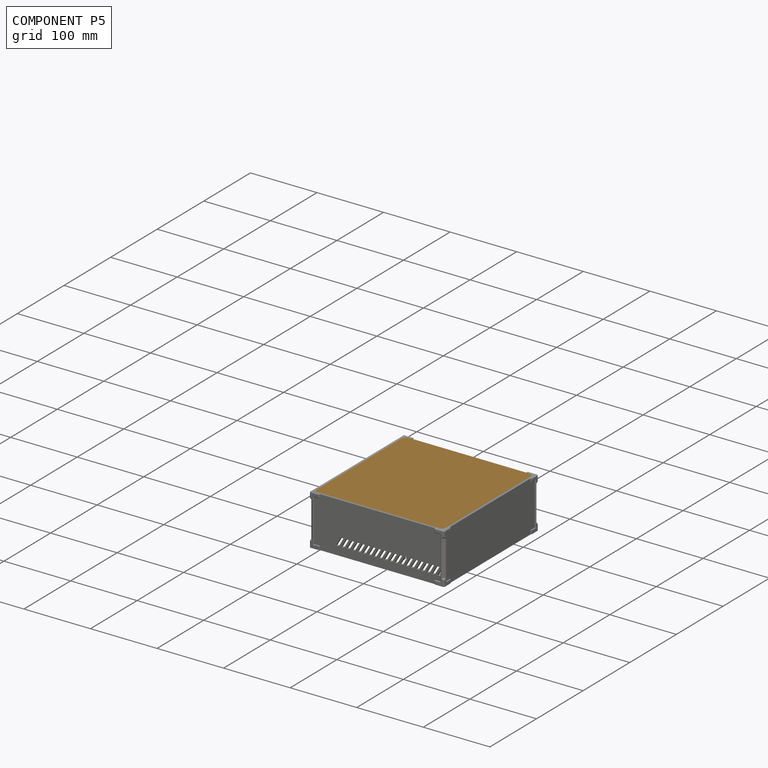
[diagram: component P5 — assembled]
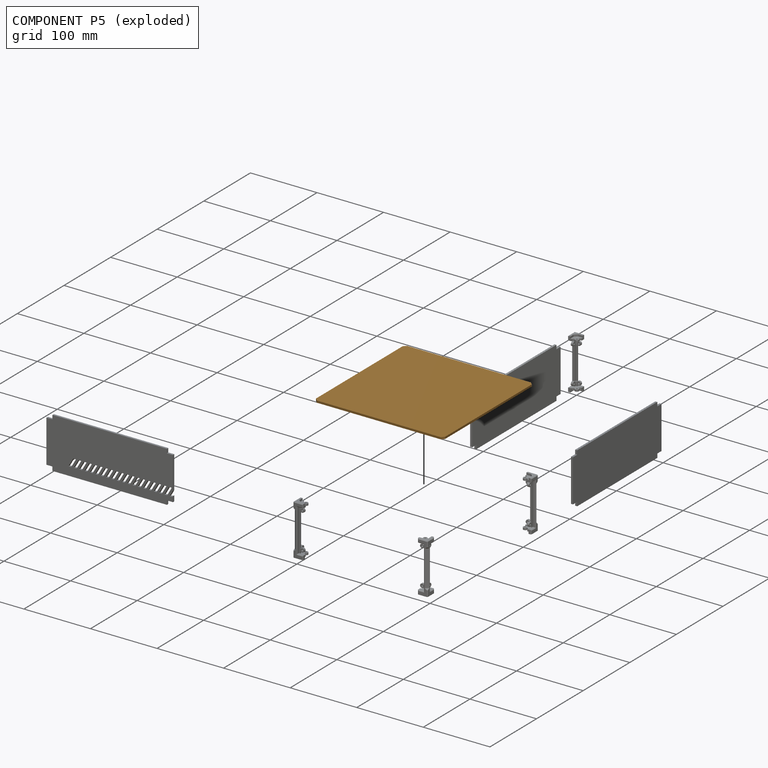
[diagram: component P5 — exploded]
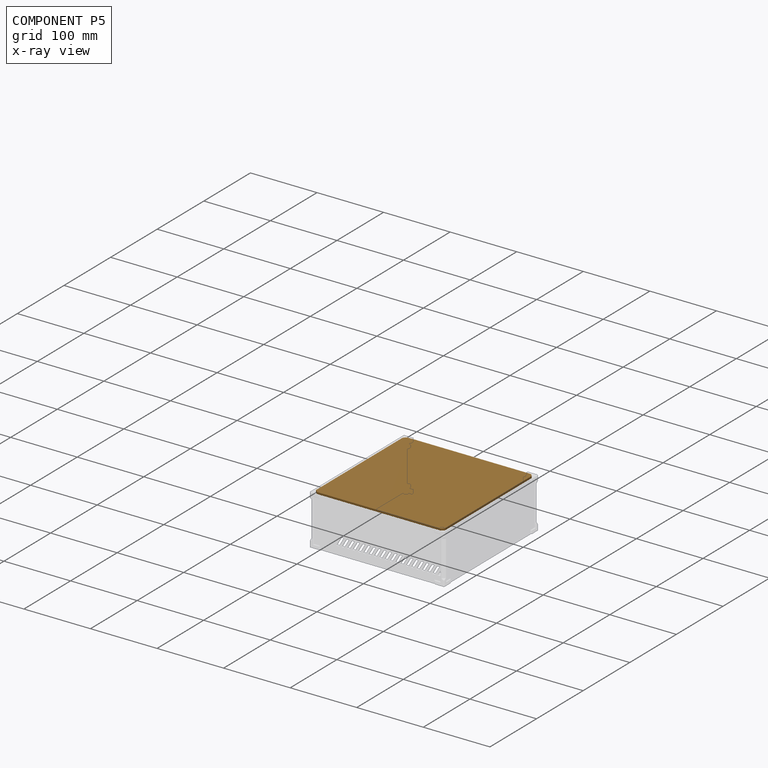
[diagram: component P5 — x-ray view]
COMPONENT P5 — geometry summary (no construction recipe available for this part):
  bounding box: 194.0 x 194.0 x 3.0 mm
  B-rep topology: 1 solid, 10 faces, 48 edges
  volume: 112812 mm^3 (100% of its bounding box)
  symmetry: 2-fold rotationally symmetric about the x axis; 2-fold rotationally symmetric about the y axis; 4-fold rotationally symmetric about the z axis; mirror-symmetric across its x mid-plane, y mid-plane, z mid-plane
Held by: FASTENED mate "Fastened 7" to P3.
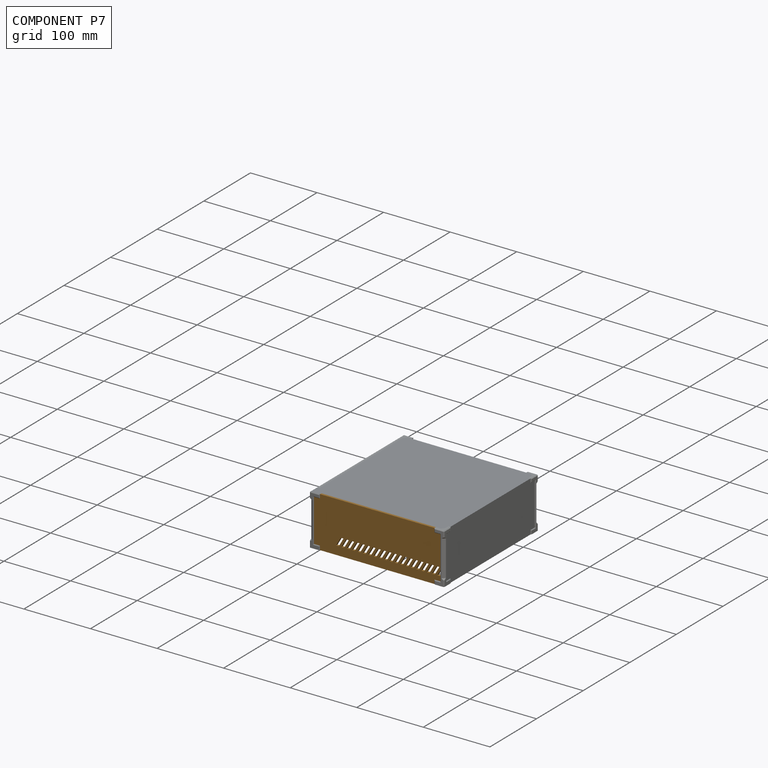
[diagram: component P7 — assembled]
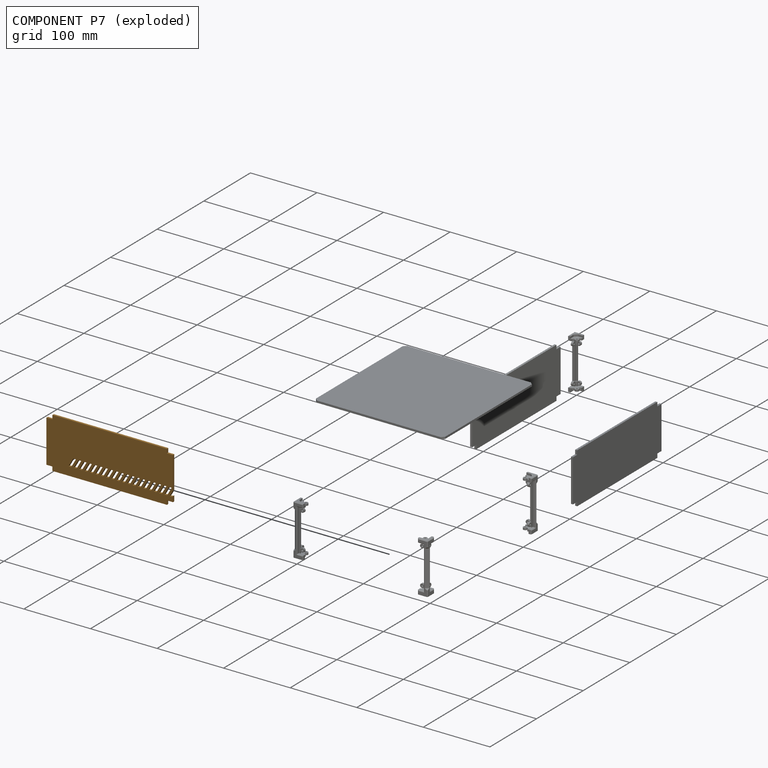
[diagram: component P7 — exploded]
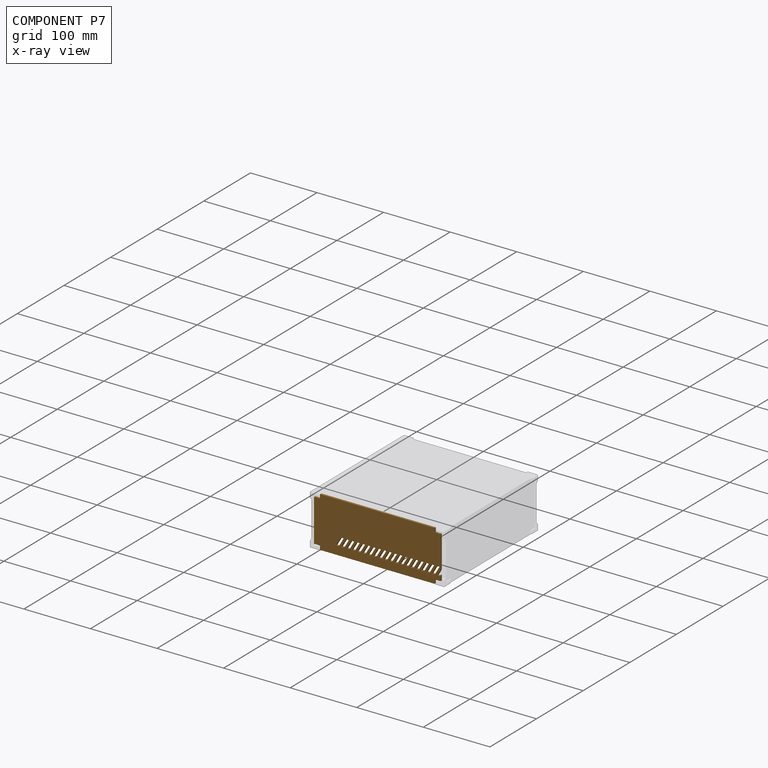
[diagram: component P7 — x-ray view]
COMPONENT P7 — geometry summary (no construction recipe available for this part):
  bounding box: 190.0 x 76.0 x 3.0 mm
  B-rep topology: 1 solid, 94 faces, 552 edges
  volume: 39851 mm^3 (92% of its bounding box)
  symmetry: mirror-symmetric across its y mid-plane
Held by: FASTENED mate "Fastened 2" to P2; FASTENED mate "Fastened 1" to P3.
PROVENANCE & LICENSES
Assembly (occurrences, transforms, mates, per-part STEP geometry): AutoMate dataset, Zenodo record 7776208, CC0.
Construction recipes: CADFS (HuggingFace VladPyatov/CADFS, CC-BY-4.0, layered over the ABC dataset), FeatureScript reconstruction programs keyed by ABC model id.
Join: ABC meta listings map ABC model id -> Onshape documentId; within a shared document, parts are matched by geometric signature (bounding-box dims + volume at 0.1% relative tolerance, exact B-rep face/solid counts).
Verification: 4 of this assembly's 8 components carry a recipe attachment, and every attachment is mesh-verified: the CADFS STEP and the AutoMate member STEP were compared as meshes in their shared local frame (symmetric sampled-point-to-mesh distance); worst across the 4 attachments: below the mesh-comparison resolution (tessellation chordal tolerance ~0.118 mm) on a 79 mm part.
Renders: orthographic iso camera (az 35 / el 25); the floor grid conveys scale (grid pitch printed in each image; no ruler). In the exploded view each component is displaced by its stored offset vector: the offsets alone carry the explosion direction (mate normal/axis signs are not orientation cues and do not encode it), and separation distances are assigned per mate-chain, not proportionally to assembly-order depth.
